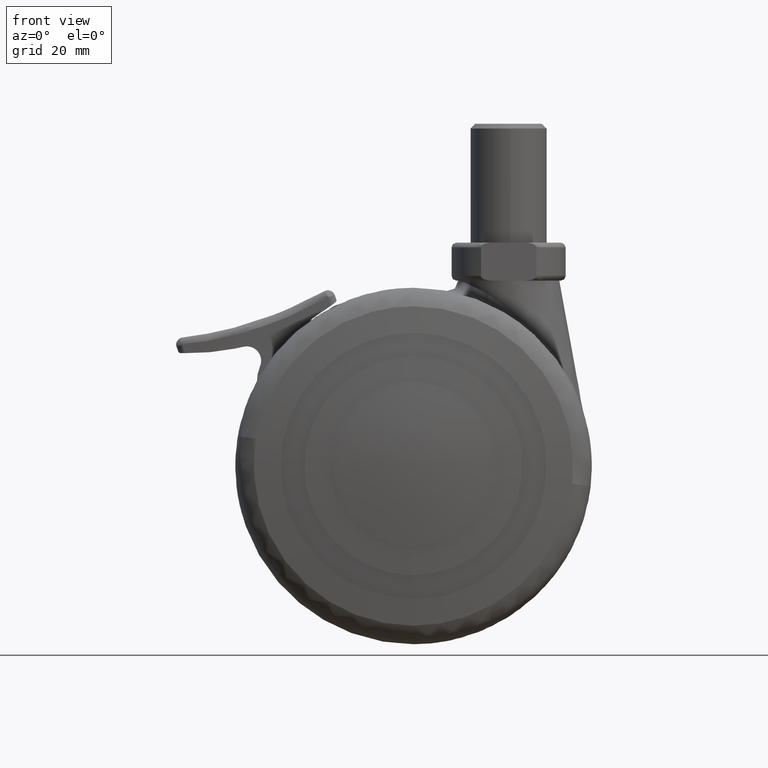
[diagram: clean part render]
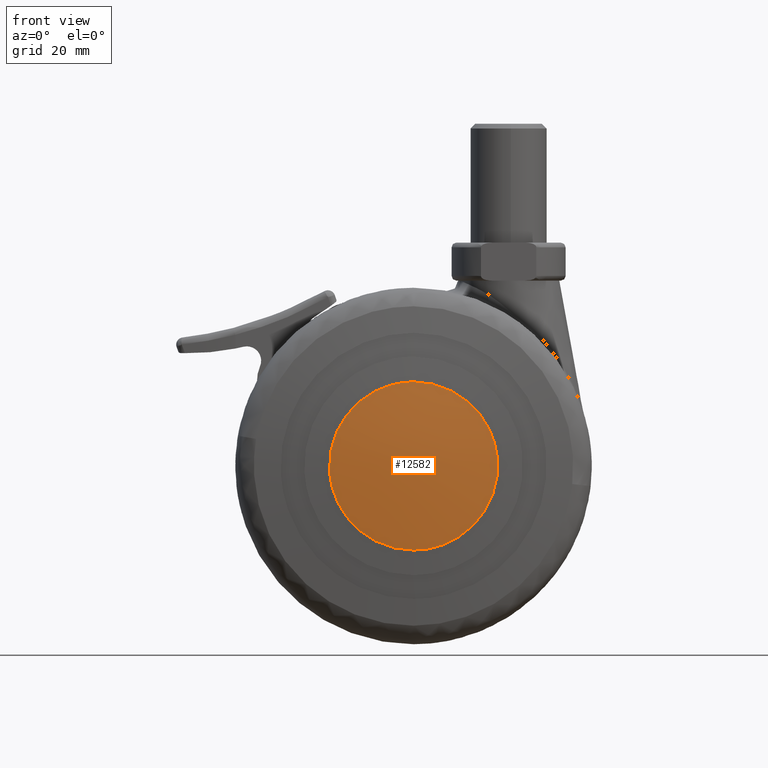
[diagram: same view with one face highlighted and labeled with its STEP entity id]
A machine part, front view. The second image highlights one B-rep face of the part: STEP entity #12582.
In plain terms, the highlighted face is a freeform B-spline surface patch.
Its self-contained STEP definition (entity closure, byte-faithful):
#9206=CARTESIAN_POINT('',(17.576269484888581,-30.499999552056249,2.089206056703660));
#9207=VERTEX_POINT('',#9206);
#9208=CARTESIAN_POINT('',(0.0,-30.499999552056249,-17.700000874372648));
#9209=VERTEX_POINT('',#9208);
#9210=CARTESIAN_POINT('',(17.576269484888577,-30.499999552056256,2.089206056703661));
#9211=CARTESIAN_POINT('',(17.700000874372648,-30.499999552056249,1.048266969696660));
#9212=CARTESIAN_POINT('',(17.700000874372648,-30.499999552056249,0.0));
#9213=CARTESIAN_POINT('',(17.700000874372648,-30.499999552056252,-17.700000874372648));
#9214=CARTESIAN_POINT('',(0.0,-30.499999552056249,-17.700000874372648));
#9222=(BOUNDED_CURVE()B_SPLINE_CURVE(2,(#9210,#9211,#9212,#9213,#9214),.UNSPECIFIED.,.F.,.U.)B_SPLINE_CURVE_WITH_KNOTS((3,2,3),(0.229562473514238,0.250000000000000,0.500000000000000),.UNSPECIFIED.)CURVE()GEOMETRIC_REPRESENTATION_ITEM()RATIONAL_B_SPLINE_CURVE((0.956026754185129,0.976055948332000,1.0,0.707106781186548,1.0))REPRESENTATION_ITEM(''));
#9223=EDGE_CURVE('',#9207,#9209,#9222,.T.);
#9225=CARTESIAN_POINT('',(-17.666986804803422,-30.499999552056249,-1.080559203234290));
#9226=VERTEX_POINT('',#9225);
#9227=CARTESIAN_POINT('',(0.0,-30.499999552056249,-17.700000874372648));
#9228=CARTESIAN_POINT('',(-16.650498206591966,-30.499999552056256,-17.700000874372659));
#9229=CARTESIAN_POINT('',(-17.666986804803422,-30.499999552056256,-1.080559203234289));
#9237=(BOUNDED_CURVE()B_SPLINE_CURVE(2,(#9227,#9228,#9229),.UNSPECIFIED.,.F.,.U.)B_SPLINE_CURVE_WITH_KNOTS((3,3),(0.500000000000000,0.739332962240246),.UNSPECIFIED.)CURVE()GEOMETRIC_REPRESENTATION_ITEM()RATIONAL_B_SPLINE_CURVE((1.0,0.719603993285183,0.976072041669511))REPRESENTATION_ITEM(''));
#9238=EDGE_CURVE('',#9209,#9226,#9237,.T.);
#9305=CARTESIAN_POINT('',(0.0,-30.499999552056249,17.700000874372648));
#9306=VERTEX_POINT('',#9305);
#9307=CARTESIAN_POINT('',(0.0,-30.499999552056249,17.700000874372648));
#9308=CARTESIAN_POINT('',(15.720689885802972,-30.499999552056256,17.700000874372648));
#9309=CARTESIAN_POINT('',(17.576269484888581,-30.499999552056252,2.089206056703660));
#9317=(BOUNDED_CURVE()B_SPLINE_CURVE(2,(#9307,#9308,#9309),.UNSPECIFIED.,.F.,.U.)B_SPLINE_CURVE_WITH_KNOTS((3,3),(0.0,0.229562473514238),.UNSPECIFIED.)CURVE()GEOMETRIC_REPRESENTATION_ITEM()RATIONAL_B_SPLINE_CURVE((1.0,0.731050832854548,0.956026754185129))REPRESENTATION_ITEM(''));
#9318=EDGE_CURVE('',#9306,#9207,#9317,.T.);
#9352=CARTESIAN_POINT('',(-17.666986804803425,-30.499999552056252,-1.080559203234290));
#9353=CARTESIAN_POINT('',(-17.700000874372655,-30.499999552056252,-0.540783937187920));
#9354=CARTESIAN_POINT('',(-17.700000874372648,-30.499999552056249,0.0));
#9355=CARTESIAN_POINT('',(-17.700000874372648,-30.499999552056252,17.700000874372648));
#9356=CARTESIAN_POINT('',(0.0,-30.499999552056249,17.700000874372648));
#9364=(BOUNDED_CURVE()B_SPLINE_CURVE(2,(#9352,#9353,#9354,#9355,#9356),.UNSPECIFIED.,.F.,.U.)B_SPLINE_CURVE_WITH_KNOTS((3,2,3),(0.739332962240246,0.750000000000000,1.0),.UNSPECIFIED.)CURVE()GEOMETRIC_REPRESENTATION_ITEM()RATIONAL_B_SPLINE_CURVE((0.976072041669511,0.987502787901365,1.0,0.707106781186548,1.0))REPRESENTATION_ITEM(''));
#9365=EDGE_CURVE('',#9226,#9306,#9364,.T.);
#12552=CARTESIAN_POINT('',(-19.317830197745057,-28.661285594582328,-19.318258914583161));
#12553=CARTESIAN_POINT('',(-9.722744867696797,-30.226471714667028,-19.445921285354906));
#12554=CARTESIAN_POINT('',(9.722799782367410,-30.226471714667028,-19.445921285354906));
#12555=CARTESIAN_POINT('',(19.317937873454252,-28.661268030068637,-19.318257481956444));
#12556=CARTESIAN_POINT('',(-19.445495439149692,-30.226541646299722,-9.722963494618794));
#12557=CARTESIAN_POINT('',(-9.787426761102427,-31.812552999999951,-9.787643971555722));
#12558=CARTESIAN_POINT('',(9.787482041100416,-31.812552999999951,-9.787643971555722));
#12559=CARTESIAN_POINT('',(19.445603816922350,-30.226523848862591,-9.722962768806378));
#12560=CARTESIAN_POINT('',(-19.445495439149692,-30.226541646299722,9.722962005065741));
#12561=CARTESIAN_POINT('',(-9.787426761102427,-31.812552999999951,9.787642472093653));
#12562=CARTESIAN_POINT('',(9.787482041100416,-31.812552999999951,9.787642472093653));
#12563=CARTESIAN_POINT('',(19.445603816922350,-30.226523848862591,9.722961279253436));
#12564=CARTESIAN_POINT('',(-19.317830236604742,-28.661286071026488,19.318255993896262));
#12565=CARTESIAN_POINT('',(-9.722744887384287,-30.226472197429050,19.445918345625504));
#12566=CARTESIAN_POINT('',(9.722799802055013,-30.226472197429050,19.445918345625504));
#12567=CARTESIAN_POINT('',(19.317937912314150,-28.661268506512727,19.318254561269754));
#12575=(BOUNDED_SURFACE()B_SPLINE_SURFACE(2,2,((#12552,#12556,#12560,#12564),(#12553,#12557,#12561,#12565),(#12554,#12558,#12562,#12566),(#12555,#12559,#12563,#12567)),.UNSPECIFIED.,.F.,.F.,.U.)B_SPLINE_SURFACE_WITH_KNOTS((3,1,3),(3,1,3),(36.098124809455868,55.141904456465539,74.185791663932804),(36.097702174568177,55.141904456465539,74.186103820800781),.UNSPECIFIED.)GEOMETRIC_REPRESENTATION_ITEM()RATIONAL_B_SPLINE_SURFACE(((1.013304978966519,1.006652341847496,1.006652341847496,1.013304976928158),(1.006652637119023,1.0,1.0,1.006652635080662),(1.006652637119023,1.0,1.0,1.006652635080662),(1.013305054112416,1.006652416993394,1.006652416993394,1.013305052074055)))REPRESENTATION_ITEM('')SURFACE());
#12576=ORIENTED_EDGE('',*,*,#9365,.F.);
#12577=ORIENTED_EDGE('',*,*,#9238,.F.);
#12578=ORIENTED_EDGE('',*,*,#9223,.F.);
#12579=ORIENTED_EDGE('',*,*,#9318,.F.);
#12580=EDGE_LOOP('',(#12576,#12577,#12578,#12579));
#12581=FACE_OUTER_BOUND('',#12580,.T.);
#12582=ADVANCED_FACE('',(#12581),#12575,.T.);